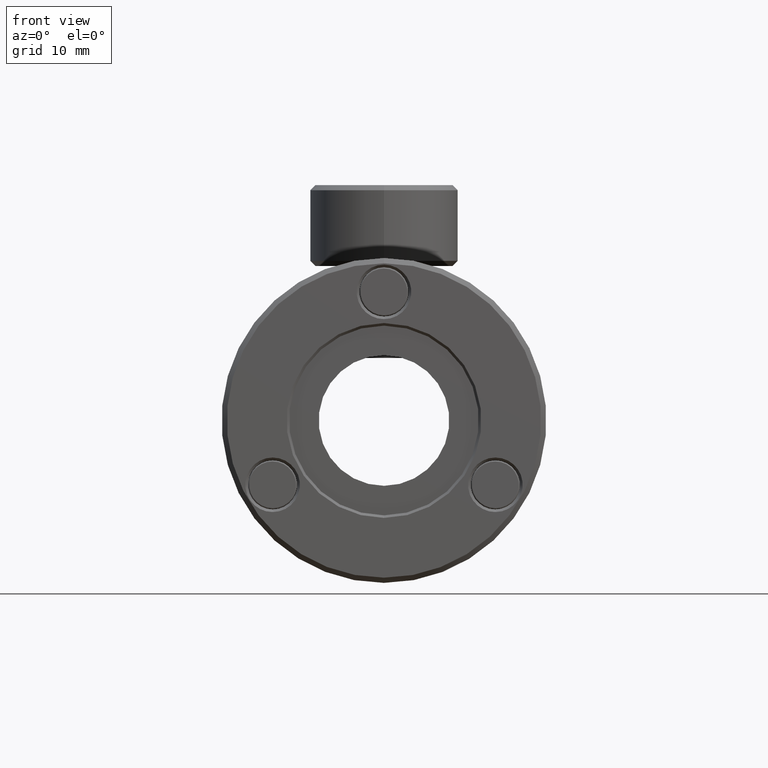
[diagram: clean part render]
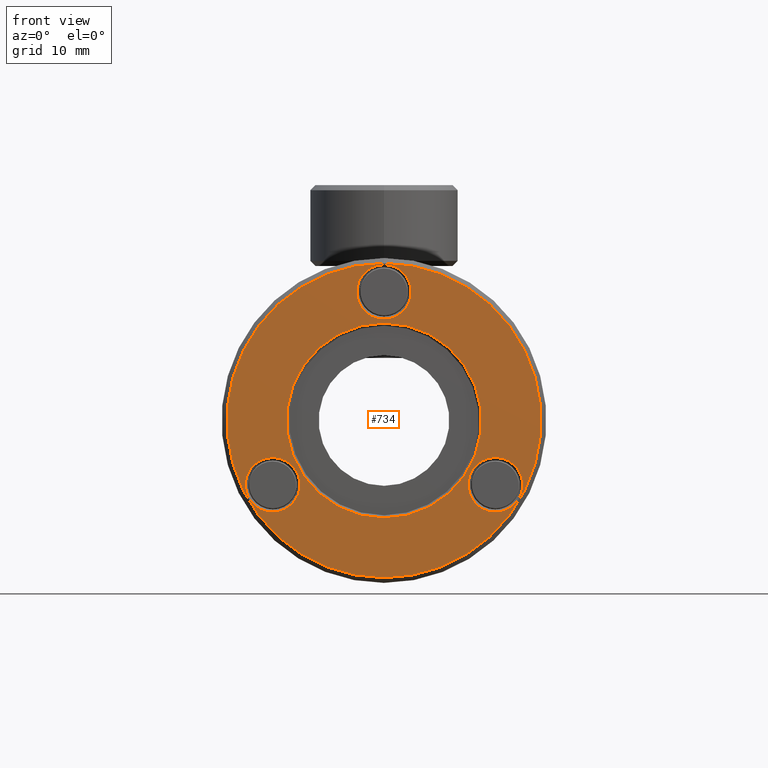
[diagram: same view with one face highlighted and labeled with its STEP entity id]
A machine part, front view. The second image highlights one B-rep face of the part: STEP entity #734.
In plain terms, the highlighted planar face has unit normal (0, -1, -0).
Its self-contained STEP definition (entity closure, byte-faithful):
#32 = CARTESIAN_POINT ( 'NONE',  ( -27.66544156371120900, -19.54783156452665300, 5.559463599045014500 ) ) ;
#55 = CARTESIAN_POINT ( 'NONE',  ( -5.888366760147686600, -19.54783156452665300, 5.559463599045020700 ) ) ;
#98 = CARTESIAN_POINT ( 'NONE',  ( -16.77690416192945100, -19.54783156452665300, 11.84596359904499100 ) ) ;
#157 = CARTESIAN_POINT ( 'NONE',  ( -27.66544156371120900, -19.54783156452665300, 5.559463599045014500 ) ) ;
#209 = EDGE_CURVE ( 'NONE', #2777, #2087, #2714, .T. ) ;
#281 = VERTEX_POINT ( 'NONE', #2791 ) ;
#295 = CIRCLE ( 'NONE', #3316, 9.525000000000000400 ) ;
#346 = FACE_BOUND ( 'NONE', #2857, .T. ) ;
#428 = EDGE_CURVE ( 'NONE', #2654, #2840, #1347, .T. ) ;
#515 = FACE_BOUND ( 'NONE', #3065, .T. ) ;
#540 = EDGE_LOOP ( 'NONE', ( #1694, #3019 ) ) ;
#555 = CARTESIAN_POINT ( 'NONE',  ( -16.77690416192945100, -19.54783156452665300, 11.84596359904499100 ) ) ;
#578 = AXIS2_PLACEMENT_3D ( 'NONE', #867, #1129, #3050 ) ;
#691 = CARTESIAN_POINT ( 'NONE',  ( -27.66544156371120900, -19.54783156452665300, 8.226463599045020600 ) ) ;
#713 = DIRECTION ( 'NONE',  ( -0.0000000000000000000, -1.000000000000000000, -0.0000000000000000000 ) ) ;
#734 = ADVANCED_FACE ( 'NONE', ( #346, #2147, #1814, #2066, #515 ), #1940, .T. ) ;
#736 = DIRECTION ( 'NONE',  ( 0.0000000000000000000, 1.000000000000000000, 0.0000000000000000000 ) ) ;
#781 = CIRCLE ( 'NONE', #1266, 2.667000000000006900 ) ;
#792 = ORIENTED_EDGE ( 'NONE', *, *, #2110, .F. ) ;
#867 = CARTESIAN_POINT ( 'NONE',  ( -16.77690416192945100, -19.54783156452665300, 11.84596359904499100 ) ) ;
#895 = CARTESIAN_POINT ( 'NONE',  ( -27.66544156371120900, -19.54783156452665300, 2.892463599045008500 ) ) ;
#913 = CARTESIAN_POINT ( 'NONE',  ( -16.77690416192945100, -19.54783156452665300, 2.320963599044987700 ) ) ;
#1022 = AXIS2_PLACEMENT_3D ( 'NONE', #32, #2203, #2445 ) ;
#1105 = CIRCLE ( 'NONE', #2655, 15.36700000000000100 ) ;
#1129 = DIRECTION ( 'NONE',  ( -0.0000000000000000000, -1.000000000000000000, -0.0000000000000000000 ) ) ;
#1144 = CIRCLE ( 'NONE', #3267, 2.667000000000006000 ) ;
#1186 = CARTESIAN_POINT ( 'NONE',  ( -5.888366760147686600, -19.54783156452665300, 2.892463599045016500 ) ) ;
#1193 = DIRECTION ( 'NONE',  ( 0.0000000000000000000, 1.000000000000000000, 0.0000000000000000000 ) ) ;
#1209 = ORIENTED_EDGE ( 'NONE', *, *, #2986, .T. ) ;
#1266 = AXIS2_PLACEMENT_3D ( 'NONE', #157, #736, #2930 ) ;
#1306 = CIRCLE ( 'NONE', #2234, 2.666999999999995800 ) ;
#1347 = CIRCLE ( 'NONE', #1618, 2.667000000000006000 ) ;
#1381 = DIRECTION ( 'NONE',  ( 0.0000000000000000000, 0.0000000000000000000, -1.000000000000000000 ) ) ;
#1386 = CARTESIAN_POINT ( 'NONE',  ( -7.251904161929450900, -19.54783156452665300, 11.84596359904499100 ) ) ;
#1411 = DIRECTION ( 'NONE',  ( 0.0000000000000000000, 0.0000000000000000000, -1.000000000000000000 ) ) ;
#1420 = CARTESIAN_POINT ( 'NONE',  ( -16.77690416192945100, -19.54783156452665300, 27.21296359904499000 ) ) ;
#1482 = DIRECTION ( 'NONE',  ( 0.0000000000000000000, 0.0000000000000000000, -1.000000000000000000 ) ) ;
#1536 = AXIS2_PLACEMENT_3D ( 'NONE', #555, #2191, #3343 ) ;
#1582 = CARTESIAN_POINT ( 'NONE',  ( -16.77690416192945100, -19.54783156452665300, 21.37096359904498800 ) ) ;
#1618 = AXIS2_PLACEMENT_3D ( 'NONE', #55, #1193, #2803 ) ;
#1639 = CIRCLE ( 'NONE', #1536, 15.36700000000000100 ) ;
#1676 = VERTEX_POINT ( 'NONE', #2838 ) ;
#1694 = ORIENTED_EDGE ( 'NONE', *, *, #209, .T. ) ;
#1717 = VERTEX_POINT ( 'NONE', #3367 ) ;
#1810 = CARTESIAN_POINT ( 'NONE',  ( -16.77690416192945100, -19.54783156452665300, 11.84596359904499100 ) ) ;
#1814 = FACE_BOUND ( 'NONE', #540, .T. ) ;
#1848 = DIRECTION ( 'NONE',  ( 0.0000000000000000000, 1.000000000000000000, 0.0000000000000000000 ) ) ;
#1940 = PLANE ( 'NONE',  #3113 ) ;
#1951 = CIRCLE ( 'NONE', #3408, 2.666999999999995800 ) ;
#2010 = DIRECTION ( 'NONE',  ( -0.0000000000000000000, -1.000000000000000000, -0.0000000000000000000 ) ) ;
#2043 = ORIENTED_EDGE ( 'NONE', *, *, #3368, .T. ) ;
#2044 = ORIENTED_EDGE ( 'NONE', *, *, #2220, .T. ) ;
#2066 = FACE_OUTER_BOUND ( 'NONE', #3158, .T. ) ;
#2087 = VERTEX_POINT ( 'NONE', #691 ) ;
#2110 = EDGE_CURVE ( 'NONE', #2167, #3274, #295, .T. ) ;
#2147 = FACE_BOUND ( 'NONE', #2330, .T. ) ;
#2167 = VERTEX_POINT ( 'NONE', #1582 ) ;
#2191 = DIRECTION ( 'NONE',  ( -0.0000000000000000000, -1.000000000000000000, -0.0000000000000000000 ) ) ;
#2193 = ORIENTED_EDGE ( 'NONE', *, *, #2642, .F. ) ;
#2203 = DIRECTION ( 'NONE',  ( 0.0000000000000000000, 1.000000000000000000, 0.0000000000000000000 ) ) ;
#2213 = CARTESIAN_POINT ( 'NONE',  ( -16.77690416192945100, -19.54783156452665300, 24.41896359904498900 ) ) ;
#2220 = EDGE_CURVE ( 'NONE', #281, #2730, #1639, .T. ) ;
#2234 = AXIS2_PLACEMENT_3D ( 'NONE', #3472, #1848, #3196 ) ;
#2330 = EDGE_LOOP ( 'NONE', ( #2043, #1209 ) ) ;
#2361 = DIRECTION ( 'NONE',  ( 0.0000000000000000000, 0.0000000000000000000, -1.000000000000000000 ) ) ;
#2445 = DIRECTION ( 'NONE',  ( 0.0000000000000000000, 0.0000000000000000000, -1.000000000000000000 ) ) ;
#2572 = DIRECTION ( 'NONE',  ( 0.0000000000000000000, 1.000000000000000000, 0.0000000000000000000 ) ) ;
#2642 = EDGE_CURVE ( 'NONE', #3274, #2167, #3021, .T. ) ;
#2652 = ORIENTED_EDGE ( 'NONE', *, *, #3437, .T. ) ;
#2654 = VERTEX_POINT ( 'NONE', #3034 ) ;
#2655 = AXIS2_PLACEMENT_3D ( 'NONE', #98, #2010, #3427 ) ;
#2714 = CIRCLE ( 'NONE', #1022, 2.667000000000006900 ) ;
#2730 = VERTEX_POINT ( 'NONE', #1420 ) ;
#2777 = VERTEX_POINT ( 'NONE', #895 ) ;
#2791 = CARTESIAN_POINT ( 'NONE',  ( -16.77690416192944800, -19.54783156452665300, -3.521036400955010600 ) ) ;
#2799 = DIRECTION ( 'NONE',  ( 0.0000000000000000000, 1.000000000000000000, 0.0000000000000000000 ) ) ;
#2803 = DIRECTION ( 'NONE',  ( 0.0000000000000000000, 0.0000000000000000000, -1.000000000000000000 ) ) ;
#2838 = CARTESIAN_POINT ( 'NONE',  ( -16.77690416192945100, -19.54783156452665300, 21.75196359904499500 ) ) ;
#2840 = VERTEX_POINT ( 'NONE', #1186 ) ;
#2857 = EDGE_LOOP ( 'NONE', ( #2652, #2913 ) ) ;
#2867 = CARTESIAN_POINT ( 'NONE',  ( -5.888366760147686600, -19.54783156452665300, 5.559463599045020700 ) ) ;
#2913 = ORIENTED_EDGE ( 'NONE', *, *, #428, .T. ) ;
#2930 = DIRECTION ( 'NONE',  ( 0.0000000000000000000, 0.0000000000000000000, -1.000000000000000000 ) ) ;
#2979 = ORIENTED_EDGE ( 'NONE', *, *, #3500, .T. ) ;
#2986 = EDGE_CURVE ( 'NONE', #1717, #1676, #1306, .T. ) ;
#3019 = ORIENTED_EDGE ( 'NONE', *, *, #3122, .T. ) ;
#3021 = CIRCLE ( 'NONE', #578, 9.525000000000000400 ) ;
#3034 = CARTESIAN_POINT ( 'NONE',  ( -5.888366760147686600, -19.54783156452665300, 8.226463599045025900 ) ) ;
#3050 = DIRECTION ( 'NONE',  ( 0.0000000000000000000, 0.0000000000000000000, -1.000000000000000000 ) ) ;
#3065 = EDGE_LOOP ( 'NONE', ( #2193, #792 ) ) ;
#3113 = AXIS2_PLACEMENT_3D ( 'NONE', #1386, #3318, #1381 ) ;
#3122 = EDGE_CURVE ( 'NONE', #2087, #2777, #781, .T. ) ;
#3158 = EDGE_LOOP ( 'NONE', ( #2979, #2044 ) ) ;
#3196 = DIRECTION ( 'NONE',  ( 0.0000000000000000000, 0.0000000000000000000, -1.000000000000000000 ) ) ;
#3267 = AXIS2_PLACEMENT_3D ( 'NONE', #2867, #2572, #1482 ) ;
#3274 = VERTEX_POINT ( 'NONE', #913 ) ;
#3316 = AXIS2_PLACEMENT_3D ( 'NONE', #1810, #713, #2361 ) ;
#3318 = DIRECTION ( 'NONE',  ( 0.0000000000000000000, -1.000000000000000000, -0.0000000000000000000 ) ) ;
#3343 = DIRECTION ( 'NONE',  ( 0.0000000000000000000, 0.0000000000000000000, -1.000000000000000000 ) ) ;
#3367 = CARTESIAN_POINT ( 'NONE',  ( -16.77690416192945100, -19.54783156452665300, 27.08596359904498400 ) ) ;
#3368 = EDGE_CURVE ( 'NONE', #1676, #1717, #1951, .T. ) ;
#3408 = AXIS2_PLACEMENT_3D ( 'NONE', #2213, #2799, #1411 ) ;
#3427 = DIRECTION ( 'NONE',  ( 0.0000000000000000000, 0.0000000000000000000, -1.000000000000000000 ) ) ;
#3437 = EDGE_CURVE ( 'NONE', #2840, #2654, #1144, .T. ) ;
#3472 = CARTESIAN_POINT ( 'NONE',  ( -16.77690416192945100, -19.54783156452665300, 24.41896359904498900 ) ) ;
#3500 = EDGE_CURVE ( 'NONE', #2730, #281, #1105, .T. ) ;